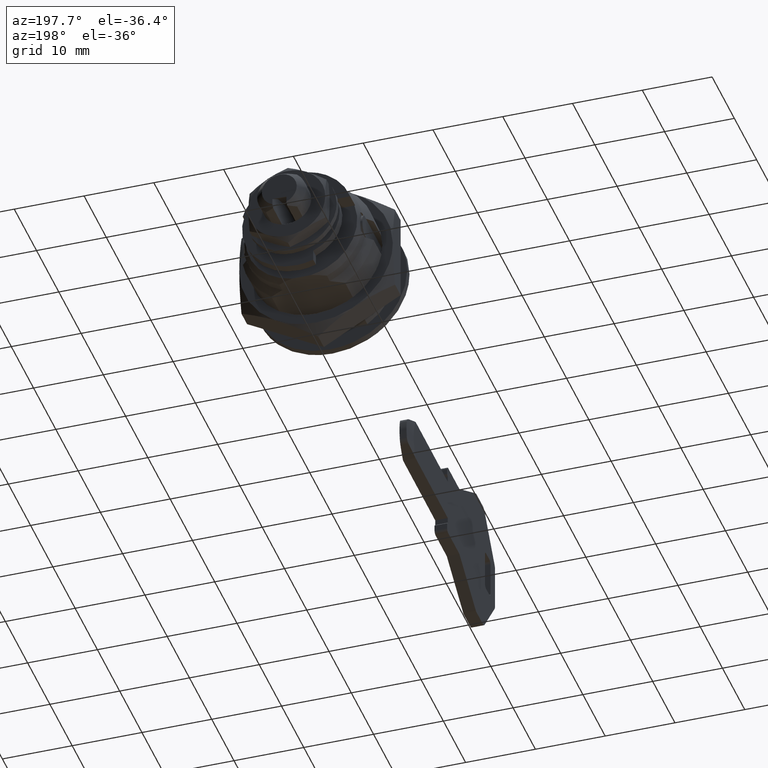
[diagram: clean part render]
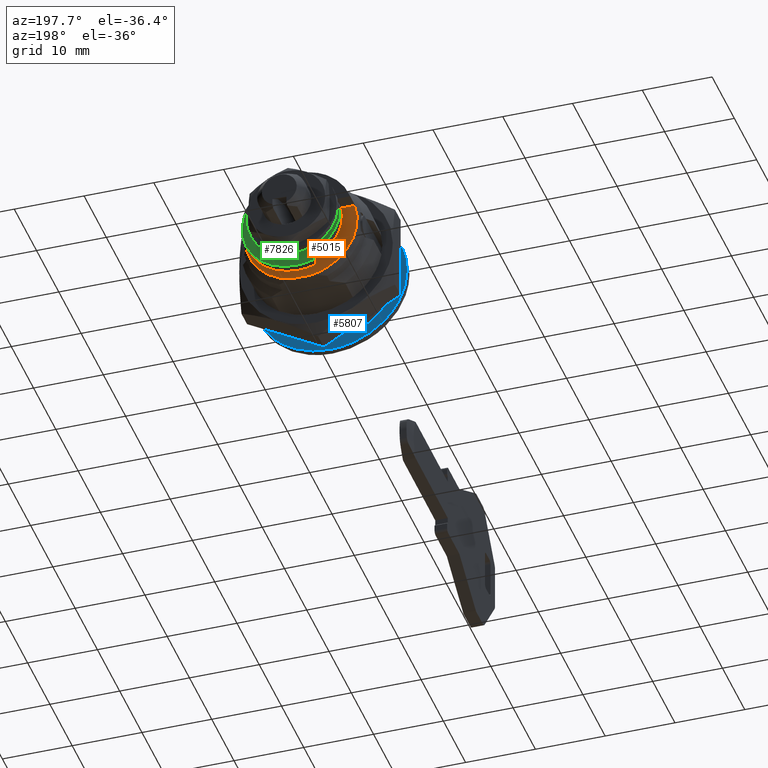
[diagram: same view with three faces highlighted in distinct colors, each labeled with its STEP entity id]
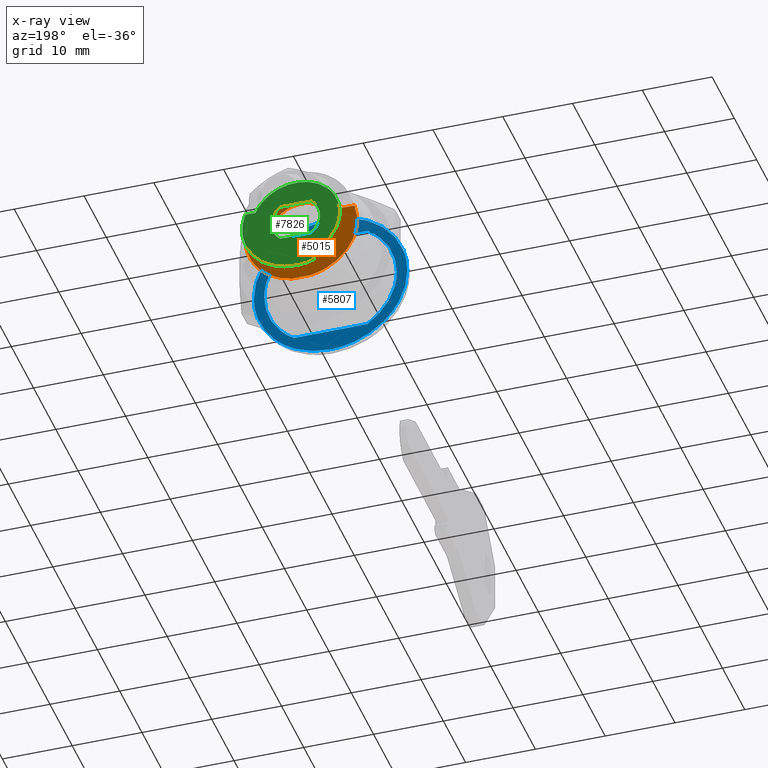
[diagram: x-ray of the same camera — body ghosted, the three highlighted faces saturated]
A machine part, auxiliary view with three faces highlighted in distinct colors.
The next image is the same camera in x-ray (body ghosted, the three faces saturated) — at least one of them is partly hidden behind the body in this view.
Their STEP definitions:

[orange] entity #5015 — the highlighted face is a freeform B-spline surface patch.
#3879=CARTESIAN_POINT('',(15.100000000000000,1.322913451439572,-7.900000000000000));
#3880=VERTEX_POINT('',#3879);
#3888=CARTESIAN_POINT('',(15.100000000000000,-1.322913451439574,-7.900000000000000));
#3889=VERTEX_POINT('',#3888);
#3890=CARTESIAN_POINT('',(15.100000000000000,-1.322913451439574,-7.900000000000000));
#3891=CARTESIAN_POINT('',(15.100000000000000,1.322913451439572,-7.900000000000000));
#3892=QUASI_UNIFORM_CURVE('',1,(#3890,#3891),.UNSPECIFIED.,.F.,.U.);
#3893=EDGE_CURVE('',#3889,#3880,#3892,.T.);
#4116=CARTESIAN_POINT('',(15.100000000000000,7.609868592820800,2.499999999999901));
#4117=VERTEX_POINT('',#4116);
#4129=CARTESIAN_POINT('',(15.100000000000000,5.782732917920440,2.499999999999901));
#4130=VERTEX_POINT('',#4129);
#4136=CARTESIAN_POINT('',(15.100000000000000,7.609868592820800,2.499999999999901));
#4137=CARTESIAN_POINT('',(15.100000000000000,5.782732917920440,2.499999999999901));
#4138=QUASI_UNIFORM_CURVE('',1,(#4136,#4137),.UNSPECIFIED.,.F.,.U.);
#4139=EDGE_CURVE('',#4117,#4130,#4138,.T.);
#4180=CARTESIAN_POINT('',(15.100000000000000,-5.782732917920440,2.499999999999901));
#4181=VERTEX_POINT('',#4180);
#4182=CARTESIAN_POINT('',(15.100000000000000,-7.609868592820789,2.499999999999901));
#4183=VERTEX_POINT('',#4182);
#4184=CARTESIAN_POINT('',(15.100000000000000,-5.782732917920440,2.499999999999901));
#4185=CARTESIAN_POINT('',(15.100000000000000,-7.609868592820789,2.499999999999901));
#4186=QUASI_UNIFORM_CURVE('',1,(#4184,#4185),.UNSPECIFIED.,.F.,.U.);
#4187=EDGE_CURVE('',#4181,#4183,#4186,.T.);
#4228=CARTESIAN_POINT('',(15.100000000000000,5.782732917920440,2.499999999999901));
#4229=CARTESIAN_POINT('',(15.100000000000071,5.540730627159654,3.060445299565796));
#4230=CARTESIAN_POINT('',(15.099999999999881,4.972952124531085,3.978648457689054));
#4231=CARTESIAN_POINT('',(15.100000000000090,3.974336321892116,4.933501335624913));
#4232=CARTESIAN_POINT('',(15.099999999999920,2.855435165047230,5.668898145733557));
#4233=CARTESIAN_POINT('',(15.099999999999920,1.671847658541845,6.131280239169487));
#4234=CARTESIAN_POINT('',(15.100000000000140,0.193438635770046,6.347607811715665));
#4235=CARTESIAN_POINT('',(15.099999999999991,-1.034029760605798,6.258308581428074));
#4236=CARTESIAN_POINT('',(15.099999999999950,-2.176095890660537,5.938980445694924));
#4237=CARTESIAN_POINT('',(15.099999999999939,-3.047195738420247,5.542695311118567));
#4238=CARTESIAN_POINT('',(15.100000000000120,-4.038361331394656,4.891575098610899));
#4239=CARTESIAN_POINT('',(15.099999999999840,-5.021450018920950,3.916549561798438));
#4240=CARTESIAN_POINT('',(15.100000000000200,-5.570902950844285,2.990334101452074));
#4241=CARTESIAN_POINT('',(15.100000000000000,-5.782732917920440,2.499999999999901));
#4242=B_SPLINE_CURVE_WITH_KNOTS('',3,(#4228,#4229,#4230,#4231,#4232,#4233,#4234,#4235,#4236,#4237,#4238,#4239,#4240,#4241),.UNSPECIFIED.,.F.,.U.,(4,1,1,1,1,1,1,1,1,1,1,4),(0.000000171034312,1.831330833070155,3.204842635082727,4.120529735850745,5.837448627879189,6.982029298408569,8.584370677155309,9.500059296555911,10.530210866741109,11.445893116199970,13.048344692560180,14.650733646407700),.UNSPECIFIED.);
#4243=EDGE_CURVE('',#4130,#4181,#4242,.T.);
#4405=CARTESIAN_POINT('',(15.100000000000000,-1.402675650882624,-4.275804137050830));
#4406=VERTEX_POINT('',#4405);
#4469=CARTESIAN_POINT('',(15.100000000000000,1.402675650882626,-4.275804137050830));
#4470=VERTEX_POINT('',#4469);
#4869=CARTESIAN_POINT('',(15.100000000000000,7.609868592820800,2.499999999999901));
#4870=CARTESIAN_POINT('',(15.099999999999991,7.834364174273542,1.817423446500035));
#4871=CARTESIAN_POINT('',(15.100000000000010,8.025142873582659,0.783627539029406));
#4872=CARTESIAN_POINT('',(15.100000000000010,8.006170387087662,-0.763943873868557));
#4873=CARTESIAN_POINT('',(15.099999999999961,7.784281559199618,-2.080542019910135));
#4874=CARTESIAN_POINT('',(15.100000000000030,7.282062345294344,-3.433770205040200));
#4875=CARTESIAN_POINT('',(15.100000000000030,6.498219660586179,-4.770794693207190));
#4876=CARTESIAN_POINT('',(15.099999999999840,5.418738590136533,-5.988469482087225));
#4877=CARTESIAN_POINT('',(15.099999999999961,4.127793525824176,-6.916584440978048));
#4878=CARTESIAN_POINT('',(15.100000000000231,2.759971682794183,-7.563388396409965));
#4879=CARTESIAN_POINT('',(15.099999999999829,1.854412437402188,-7.811080968091188));
#4880=CARTESIAN_POINT('',(15.100000000000000,1.322913451439572,-7.900000000000000));
#4881=B_SPLINE_CURVE_WITH_KNOTS('',3,(#4869,#4870,#4871,#4872,#4873,#4874,#4875,#4876,#4877,#4878,#4879,#4880),.UNSPECIFIED.,.F.,.U.,(4,1,1,1,1,1,1,1,1,4),(0.000000112823214,2.155550369902121,3.125578012597309,4.634499058849574,6.143388910580266,7.436687687487919,9.268941600921085,10.993426060410140,12.179009889291960,13.795658274486330),.UNSPECIFIED.);
#4882=EDGE_CURVE('',#4117,#3880,#4881,.T.);
#4937=CARTESIAN_POINT('',(15.100000000000000,-8.806901520369095,-8.609288583805860));
#4938=CARTESIAN_POINT('',(15.100000000000000,-8.806901520369095,7.009258367827234));
#4939=CARTESIAN_POINT('',(15.100000000000000,8.807009905798752,-8.609288583805860));
#4940=CARTESIAN_POINT('',(15.100000000000000,8.807009905798752,7.009258367827234));
#4941=B_SPLINE_SURFACE_WITH_KNOTS('',1,1,((#4937,#4939),(#4938,#4940)),.UNSPECIFIED.,.F.,.F.,.U.,(2,2),(2,2),(0.0,15.618546951633091),(0.0,17.613911426167849),.UNSPECIFIED.);
#4942=CARTESIAN_POINT('',(15.100000000000000,-1.322913451439574,-7.900000000000000));
#4943=CARTESIAN_POINT('',(15.100000000000010,-2.031625920649200,-7.781556561049676));
#4944=CARTESIAN_POINT('',(15.099999999999980,-3.035687316316266,-7.470079265853165));
#4945=CARTESIAN_POINT('',(15.100000000000019,-4.302132682559550,-6.785361093211535));
#4946=CARTESIAN_POINT('',(15.099999999999969,-5.262655488770996,-6.084881058058556));
#4947=CARTESIAN_POINT('',(15.100000000000071,-6.327150877684950,-5.007311885903559));
#4948=CARTESIAN_POINT('',(15.099999999999930,-7.187260168192188,-3.667268179351777));
#4949=CARTESIAN_POINT('',(15.100000000000120,-7.723667407732305,-2.250758307810683));
#4950=CARTESIAN_POINT('',(15.099999999999881,-8.025361132275735,-0.768063249167171));
#4951=CARTESIAN_POINT('',(15.100000000000129,-8.034049682313707,0.824241737696424));
#4952=CARTESIAN_POINT('',(15.099999999999930,-7.778118103246028,1.988060436068460));
#4953=CARTESIAN_POINT('',(15.100000000000000,-7.609868592820789,2.499999999999901));
#4954=B_SPLINE_CURVE_WITH_KNOTS('',3,(#4942,#4943,#4944,#4945,#4946,#4947,#4948,#4949,#4950,#4951,#4952,#4953),.UNSPECIFIED.,.F.,.U.,(4,1,1,1,1,1,1,1,1,4),(0.000000112822182,2.155550369901398,3.125578012596737,4.311145865712797,5.712295935890376,7.652266334699592,9.053381694640969,10.238963290789080,12.179009889291970,13.795658274486330),.UNSPECIFIED.);
#4955=EDGE_CURVE('',#3889,#4183,#4954,.T.);
#4956=ORIENTED_EDGE('',*,*,#4955,.F.);
#4957=ORIENTED_EDGE('',*,*,#3893,.T.);
#4958=ORIENTED_EDGE('',*,*,#4882,.F.);
#4959=ORIENTED_EDGE('',*,*,#4139,.T.);
#4960=ORIENTED_EDGE('',*,*,#4243,.T.);
#4961=ORIENTED_EDGE('',*,*,#4187,.T.);
#4962=EDGE_LOOP('',(#4956,#4957,#4958,#4959,#4960,#4961));
#4963=FACE_OUTER_BOUND('',#4962,.T.);
#4964=CARTESIAN_POINT('',(15.100000000000000,-1.402675650882624,-4.275804137050830));
#4965=CARTESIAN_POINT('',(15.100000000000010,-0.979159867154449,-4.414935902691544));
#4966=CARTESIAN_POINT('',(15.099999999999980,-0.031219048423250,-4.575753906719356));
#4967=CARTESIAN_POINT('',(15.100000000000010,0.922710482066283,-4.433593861065389));
#4968=CARTESIAN_POINT('',(15.100000000000000,1.402675650882626,-4.275804137050830));
#4969=B_SPLINE_CURVE_WITH_KNOTS('',3,(#4964,#4965,#4966,#4967,#4968),.UNSPECIFIED.,.F.,.U.,(4,1,4),(0.000000017065712,1.337317541986710,2.852935422225230),.UNSPECIFIED.);
#4970=EDGE_CURVE('',#4406,#4470,#4969,.T.);
#4971=ORIENTED_EDGE('',*,*,#4970,.F.);
#4972=CARTESIAN_POINT('',(15.100000000000000,-0.000001104235806,4.499999999999863));
#4973=VERTEX_POINT('',#4972);
#4974=CARTESIAN_POINT('',(15.100000000000000,-0.000001104235806,4.499999999999863));
#4975=CARTESIAN_POINT('',(15.100000000000041,-0.330996575256605,4.500062521211795));
#4976=CARTESIAN_POINT('',(15.099999999999991,-0.943330255456505,4.432118421221482));
#4977=CARTESIAN_POINT('',(15.100000000000019,-1.844426901013450,4.139097732076783));
#4978=CARTESIAN_POINT('',(15.099999999999961,-2.567530966123758,3.726408963003565));
#4979=CARTESIAN_POINT('',(15.100000000000090,-3.201728723191540,3.191488167095046));
#4980=CARTESIAN_POINT('',(15.099999999999810,-3.794114565700793,2.495034919589796));
#4981=CARTESIAN_POINT('',(15.100000000000030,-4.281188583918724,1.543112003251407));
#4982=CARTESIAN_POINT('',(15.100000000000041,-4.517988868517644,0.451430685405716));
#4983=CARTESIAN_POINT('',(15.100000000000049,-4.498454075570890,-0.630730416747898));
#4984=CARTESIAN_POINT('',(15.099999999999840,-4.199521266089040,-1.777022632784927));
#4985=CARTESIAN_POINT('',(15.100000000000129,-3.634390587588445,-2.727057499384979));
#4986=CARTESIAN_POINT('',(15.099999999999900,-2.972601844308457,-3.403957841150510));
#4987=CARTESIAN_POINT('',(15.100000000000239,-2.292048759854570,-3.907495560154415));
#4988=CARTESIAN_POINT('',(15.099999999999641,-1.748681193958564,-4.162400798576514));
#4989=CARTESIAN_POINT('',(15.100000000000000,-1.402675650882624,-4.275804137050830));
#4990=B_SPLINE_CURVE_WITH_KNOTS('',3,(#4974,#4975,#4976,#4977,#4978,#4979,#4980,#4981,#4982,#4983,#4984,#4985,#4986,#4987,#4988,#4989),.UNSPECIFIED.,.F.,.U.,(4,1,1,1,1,1,1,1,1,1,1,1,1,4),(0.000000397762996,0.992974529323917,1.837106027695455,2.830135111829659,3.475614109233186,4.319715811529324,5.560984693144598,6.653232709271631,7.646302424301655,8.788312293136954,10.178562502121190,10.923369725692529,11.618465746015721,12.710785923422851),.UNSPECIFIED.);
#4991=EDGE_CURVE('',#4973,#4406,#4990,.T.);
#4992=ORIENTED_EDGE('',*,*,#4991,.F.);
#4993=CARTESIAN_POINT('',(15.100000000000000,1.402675650882626,-4.275804137050830));
#4994=CARTESIAN_POINT('',(15.100000000000030,1.748662682499337,-4.162391869060335));
#4995=CARTESIAN_POINT('',(15.099999999999969,2.261850272937385,-3.921675153187176));
#4996=CARTESIAN_POINT('',(15.100000000000030,2.974293217150616,-3.406645384469089));
#4997=CARTESIAN_POINT('',(15.099999999999961,3.579154734787371,-2.787761549461548));
#4998=CARTESIAN_POINT('',(15.100000000000030,4.078131800115115,-1.979635816532041));
#4999=CARTESIAN_POINT('',(15.100000000000000,4.363625772043277,-1.181341309374280));
#5000=CARTESIAN_POINT('',(15.099999999999939,4.504664575967817,-0.397442802139917));
#5001=CARTESIAN_POINT('',(15.100000000000041,4.511330063356450,0.533926722515511));
#5002=CARTESIAN_POINT('',(15.100000000000010,4.282576592352059,1.509926353093359));
#5003=CARTESIAN_POINT('',(15.099999999999969,3.860179880129772,2.358098788328445));
#5004=CARTESIAN_POINT('',(15.100000000000019,3.404909632785475,2.971567023138527));
#5005=CARTESIAN_POINT('',(15.100000000000000,2.846074363243367,3.516025045358421));
#5006=CARTESIAN_POINT('',(15.099999999999991,2.144005014364208,3.992080434960112));
#5007=CARTESIAN_POINT('',(15.100000000000041,1.174974169201085,4.392309364045463));
#5008=CARTESIAN_POINT('',(15.100000000000000,0.430322909685584,4.500189204008781));
#5009=CARTESIAN_POINT('',(15.100000000000000,-0.000001104235806,4.499999999999863));
#5010=B_SPLINE_CURVE_WITH_KNOTS('',3,(#4993,#4994,#4995,#4996,#4997,#4998,#4999,#5000,#5001,#5002,#5003,#5004,#5005,#5006,#5007,#5008,#5009),.UNSPECIFIED.,.F.,.U.,(4,1,1,1,1,1,1,1,1,1,1,1,1,1,4),(0.000000397739790,1.092279932722340,1.688109836276754,2.631527120527666,3.674222658916497,4.518324126263618,5.163811998372403,6.057555480255015,7.298710888413392,8.142810751867479,8.887618104852979,9.582742795786075,10.476478194868960,11.419878622740841,12.710788131928091),.UNSPECIFIED.);
#5011=EDGE_CURVE('',#4470,#4973,#5010,.T.);
#5012=ORIENTED_EDGE('',*,*,#5011,.F.);
#5013=EDGE_LOOP('',(#4971,#4992,#5012));
#5014=FACE_BOUND('',#5013,.T.);
#5015=ADVANCED_FACE('',(#4963,#5014),#4941,.F.);

[blue] entity #5807 — the highlighted face is a freeform B-spline surface patch.
#2770=CARTESIAN_POINT('',(2.000000000000115,-7.845754741659295,-7.710001607418980));
#2771=VERTEX_POINT('',#2770);
#2777=CARTESIAN_POINT('',(2.000000000000115,-10.999999999999909,0.000001408819527));
#2778=VERTEX_POINT('',#2777);
#2779=CARTESIAN_POINT('',(2.000000000000115,-7.845754741659295,-7.710001607418980));
#2780=CARTESIAN_POINT('',(2.000000000000115,-8.438492428814955,-7.107116997665400));
#2781=CARTESIAN_POINT('',(2.000000000000116,-9.236055255062706,-6.081824300505631));
#2782=CARTESIAN_POINT('',(2.000000000000114,-10.213753508039179,-4.228686024086850));
#2783=CARTESIAN_POINT('',(2.000000000000123,-10.838747824819141,-2.313806062048935));
#2784=CARTESIAN_POINT('',(2.000000000000111,-11.000106761145950,-0.756450724903560));
#2785=CARTESIAN_POINT('',(2.000000000000115,-10.999999999999909,0.000001408819527));
#2786=B_SPLINE_CURVE_WITH_KNOTS('',3,(#2779,#2780,#2781,#2782,#2783,#2784,#2785),.UNSPECIFIED.,.F.,.U.,(4,1,1,1,4),(0.000000019915442,2.536338315210077,3.871265796770818,6.274088459617094,8.543440307720644),.UNSPECIFIED.);
#2787=EDGE_CURVE('',#2771,#2778,#2786,.T.);
#2789=CARTESIAN_POINT('',(2.000000000000115,0.0,11.0));
#2790=VERTEX_POINT('',#2789);
#2791=CARTESIAN_POINT('',(2.000000000000115,-10.999999999999909,0.000001408819527));
#2792=CARTESIAN_POINT('',(2.000000000000115,-11.000111413571929,0.764957410818571));
#2793=CARTESIAN_POINT('',(2.000000000000118,-10.877439867847571,1.934813956826253));
#2794=CARTESIAN_POINT('',(2.000000000000113,-10.348651429737810,3.892626659023365));
#2795=CARTESIAN_POINT('',(2.000000000000115,-9.469319617156589,5.781984265328669));
#2796=CARTESIAN_POINT('',(2.000000000000126,-8.104421606901616,7.530706204752335));
#2797=CARTESIAN_POINT('',(2.000000000000098,-6.786117951303128,8.696219890869593));
#2798=CARTESIAN_POINT('',(2.000000000000136,-5.554699988242239,9.530022961851355));
#2799=CARTESIAN_POINT('',(2.000000000000113,-4.144168327183627,10.240075827133440));
#2800=CARTESIAN_POINT('',(2.000000000000118,-2.249782172278039,10.840236498629499));
#2801=CARTESIAN_POINT('',(2.000000000000103,-0.809948021176963,11.000136691243220));
#2802=CARTESIAN_POINT('',(2.000000000000115,0.0,11.0));
#2803=B_SPLINE_CURVE_WITH_KNOTS('',3,(#2791,#2792,#2793,#2794,#2795,#2796,#2797,#2798,#2799,#2800,#2801,#2802),.UNSPECIFIED.,.F.,.U.,(4,1,1,1,1,1,1,1,1,4),(0.000000057959962,2.294849642750638,3.509770232109974,6.074613237684309,8.504456819681119,10.124327667291450,11.339251194513441,12.959150427206399,14.849038926338570,17.278867217588179),.UNSPECIFIED.);
#2804=EDGE_CURVE('',#2778,#2790,#2803,.T.);
#2806=CARTESIAN_POINT('',(2.000000000000115,10.999999999999909,-0.000001408819301));
#2807=VERTEX_POINT('',#2806);
#2808=CARTESIAN_POINT('',(2.000000000000115,0.0,11.0));
#2809=CARTESIAN_POINT('',(2.000000000000116,1.079993503642493,11.000524428593931));
#2810=CARTESIAN_POINT('',(2.000000000000116,2.654574569665834,10.766134509608101));
#2811=CARTESIAN_POINT('',(2.000000000000113,4.552478213614942,10.047215388387761));
#2812=CARTESIAN_POINT('',(2.000000000000114,5.864526246203694,9.345942059773378));
#2813=CARTESIAN_POINT('',(2.000000000000121,7.180948435865426,8.394471633426925));
#2814=CARTESIAN_POINT('',(2.000000000000109,8.266717255278836,7.308684344883139));
#2815=CARTESIAN_POINT('',(2.000000000000130,9.221466694414179,6.053815375758146));
#2816=CARTESIAN_POINT('',(2.000000000000104,10.008655586543160,4.683974706043210));
#2817=CARTESIAN_POINT('',(2.000000000000121,10.779760572241910,2.609643569645699));
#2818=CARTESIAN_POINT('',(2.000000000000115,11.000363347228831,0.989966126967219));
#2819=CARTESIAN_POINT('',(2.000000000000115,10.999999999999909,-0.000001408819301));
#2820=B_SPLINE_CURVE_WITH_KNOTS('',3,(#2808,#2809,#2810,#2811,#2812,#2813,#2814,#2815,#2816,#2817,#2818,#2819),.UNSPECIFIED.,.F.,.U.,(4,1,1,1,1,1,1,1,1,4),(0.000000057463929,3.239779389731030,4.724691727448521,6.074613795918181,7.694533599794758,9.584336639838870,10.664274084836290,12.419186373234860,14.309077481814400,17.278868805665990),.UNSPECIFIED.);
#2821=EDGE_CURVE('',#2790,#2807,#2820,.T.);
#2823=CARTESIAN_POINT('',(2.000000000000115,7.710002102371197,-7.845755242725687));
#2824=VERTEX_POINT('',#2823);
#2825=CARTESIAN_POINT('',(2.000000000000115,10.999999999999909,-0.000001408819301));
#2826=CARTESIAN_POINT('',(2.000000000000110,11.000181021859380,-0.864458927878384));
#2827=CARTESIAN_POINT('',(2.000000000000122,10.811316469580770,-2.456740716792883));
#2828=CARTESIAN_POINT('',(2.000000000000112,10.074717103959710,-4.572552496524351));
#2829=CARTESIAN_POINT('',(2.000000000000120,9.051466064619785,-6.354782133922583));
#2830=CARTESIAN_POINT('',(2.000000000000110,8.196815247268942,-7.367468331715108));
#2831=CARTESIAN_POINT('',(2.000000000000115,7.710002102371197,-7.845755242725687));
#2832=B_SPLINE_CURVE_WITH_KNOTS('',3,(#2825,#2826,#2827,#2828,#2829,#2830,#2831),.UNSPECIFIED.,.F.,.U.,(4,1,1,1,4),(0.000000017043380,2.593333576721521,4.777170567026847,6.688063538356241,8.735427745176825),.UNSPECIFIED.);
#2833=EDGE_CURVE('',#2807,#2824,#2832,.T.);
#2865=CARTESIAN_POINT('',(2.000000000000115,0.0,-11.0));
#2866=VERTEX_POINT('',#2865);
#2867=CARTESIAN_POINT('',(2.000000000000115,7.710002102371197,-7.845755242725687));
#2868=CARTESIAN_POINT('',(2.000000000000117,7.075400887193083,-8.469705143410625));
#2869=CARTESIAN_POINT('',(2.000000000000112,5.760201781338397,-9.480100203228469));
#2870=CARTESIAN_POINT('',(2.000000000000116,3.768537995921818,-10.395513542156730));
#2871=CARTESIAN_POINT('',(2.000000000000120,1.868847886715865,-10.890294783603100));
#2872=CARTESIAN_POINT('',(2.000000000000113,0.667454934128807,-11.000065869867020));
#2873=CARTESIAN_POINT('',(2.000000000000115,0.0,-11.0));
#2874=B_SPLINE_CURVE_WITH_KNOTS('',3,(#2867,#2868,#2869,#2870,#2871,#2872,#2873),.UNSPECIFIED.,.F.,.U.,(4,1,1,1,4),(0.000000019906917,2.669831244168999,4.939159074084010,6.541071144071802,8.543439174205554),.UNSPECIFIED.);
#2875=EDGE_CURVE('',#2824,#2866,#2874,.T.);
#2877=CARTESIAN_POINT('',(2.000000000000115,0.0,-11.0));
#2878=CARTESIAN_POINT('',(2.000000000000115,-0.591459259074157,-11.000045080757900));
#2879=CARTESIAN_POINT('',(2.000000000000116,-1.728867915468765,-10.908034033757231));
#2880=CARTESIAN_POINT('',(2.000000000000120,-3.192772898849350,-10.556378512191520));
#2881=CARTESIAN_POINT('',(2.000000000000106,-4.727681795904312,-9.978978477472337));
#2882=CARTESIAN_POINT('',(2.000000000000133,-6.284975276080690,-9.110467400382602));
#2883=CARTESIAN_POINT('',(2.000000000000100,-7.367461247350228,-8.196802818392310));
#2884=CARTESIAN_POINT('',(2.000000000000115,-7.845754741659295,-7.710001607418980));
#2885=B_SPLINE_CURVE_WITH_KNOTS('',3,(#2877,#2878,#2879,#2880,#2881,#2882,#2883,#2884),.UNSPECIFIED.,.F.,.U.,(4,1,1,1,1,4),(0.000000017033477,1.774380551160322,3.412290124289248,4.504197691086388,6.688064404302004,8.735428876192307),.UNSPECIFIED.);
#2886=EDGE_CURVE('',#2866,#2771,#2885,.T.);
#3136=CARTESIAN_POINT('',(2.000000000000100,9.499976265936599,-0.030031519363459));
#3137=VERTEX_POINT('',#3136);
#3162=CARTESIAN_POINT('',(2.000000000000100,9.499987226618451,0.022031519363478));
#3163=VERTEX_POINT('',#3162);
#3164=CARTESIAN_POINT('',(2.000000000000100,9.499987226618451,0.022031519363478));
#3165=CARTESIAN_POINT('',(2.000000000000100,9.499976265936599,-0.030031519363459));
#3166=QUASI_UNIFORM_CURVE('',1,(#3164,#3165),.UNSPECIFIED.,.F.,.U.);
#3167=EDGE_CURVE('',#3163,#3137,#3166,.T.);
#3441=CARTESIAN_POINT('',(2.000000000000100,-9.499987226618451,0.022031519363478));
#3442=VERTEX_POINT('',#3441);
#3470=CARTESIAN_POINT('',(1.999999999998820,-9.499976265936819,-0.030031519363603));
#3471=VERTEX_POINT('',#3470);
#3472=CARTESIAN_POINT('',(1.999999999998820,-9.499976265936819,-0.030031519363603));
#3473=CARTESIAN_POINT('',(2.000000000000100,-9.499987226618451,0.022031519363478));
#3474=QUASI_UNIFORM_CURVE('',1,(#3472,#3473),.UNSPECIFIED.,.F.,.U.);
#3475=EDGE_CURVE('',#3471,#3442,#3474,.T.);
#3847=CARTESIAN_POINT('',(2.000000000000100,-5.276362383309160,-7.900000000000000));
#3848=VERTEX_POINT('',#3847);
#3849=CARTESIAN_POINT('',(2.000000000000100,5.276362383309160,-7.900000000000000));
#3850=VERTEX_POINT('',#3849);
#3851=CARTESIAN_POINT('',(2.000000000000100,-5.276362383309160,-7.900000000000000));
#3852=CARTESIAN_POINT('',(2.000000000000100,5.276362383309160,-7.900000000000000));
#3853=QUASI_UNIFORM_CURVE('',1,(#3851,#3852),.UNSPECIFIED.,.F.,.U.);
#3854=EDGE_CURVE('',#3848,#3850,#3853,.T.);
#4020=CARTESIAN_POINT('',(2.000000000000100,5.276362383309160,7.900000000000000));
#4021=VERTEX_POINT('',#4020);
#4027=CARTESIAN_POINT('',(2.000000000000100,-5.276362383309160,7.900000000000000));
#4028=VERTEX_POINT('',#4027);
#4029=CARTESIAN_POINT('',(2.000000000000100,-5.276362383309160,7.900000000000000));
#4030=CARTESIAN_POINT('',(2.000000000000100,5.276362383309160,7.900000000000000));
#4031=QUASI_UNIFORM_CURVE('',1,(#4029,#4030),.UNSPECIFIED.,.F.,.U.);
#4032=EDGE_CURVE('',#4028,#4021,#4031,.T.);
#5531=CARTESIAN_POINT('',(2.000000000000100,-5.276362383309160,7.900000000000000));
#5532=CARTESIAN_POINT('',(2.000000000000105,-5.820586052627580,7.536650835613864));
#5533=CARTESIAN_POINT('',(2.000000000000099,-6.589518096629792,6.898961972605562));
#5534=CARTESIAN_POINT('',(2.000000000000102,-7.583686791600377,5.769382326766809));
#5535=CARTESIAN_POINT('',(2.000000000000103,-8.473719358766378,4.434091783176499));
#5536=CARTESIAN_POINT('',(2.000000000000091,-9.278661025694303,2.469193084719516));
#5537=CARTESIAN_POINT('',(2.000000000000108,-9.498256517231898,0.870298168119517));
#5538=CARTESIAN_POINT('',(2.000000000000100,-9.499987226618451,0.022031519363478));
#5539=B_SPLINE_CURVE_WITH_KNOTS('',3,(#5531,#5532,#5533,#5534,#5535,#5536,#5537,#5538),.UNSPECIFIED.,.F.,.U.,(4,1,1,1,1,4),(0.000000038889979,1.963082146095792,2.980982793492676,4.507826013996179,6.761731586120229,9.306470046981215),.UNSPECIFIED.);
#5540=EDGE_CURVE('',#4028,#3442,#5539,.T.);
#5560=CARTESIAN_POINT('',(1.999999999998820,-9.499976265936819,-0.030031519363603));
#5561=CARTESIAN_POINT('',(1.999999999998928,-9.497613290368824,-0.877584598562962));
#5562=CARTESIAN_POINT('',(1.999999999999101,-9.323621643771949,-2.136038379382791));
#5563=CARTESIAN_POINT('',(1.999999999999340,-8.747843449084829,-3.785594486880334));
#5564=CARTESIAN_POINT('',(1.999999999999540,-8.145450411359164,-4.950466610402825));
#5565=CARTESIAN_POINT('',(1.999999999999792,-7.075870264390057,-6.452860310702978));
#5566=CARTESIAN_POINT('',(1.999999999999976,-6.062019975449369,-7.375858352908097));
#5567=CARTESIAN_POINT('',(2.000000000000100,-5.276362383309160,-7.900000000000000));
#5568=B_SPLINE_CURVE_WITH_KNOTS('',3,(#5560,#5561,#5562,#5563,#5564,#5565,#5566,#5567),.UNSPECIFIED.,.F.,.U.,(4,1,1,1,1,4),(0.000000038725279,2.542552314367550,3.777518932698460,5.230379970907160,6.465343229069635,9.298474860037954),.UNSPECIFIED.);
#5569=EDGE_CURVE('',#3471,#3848,#5568,.T.);
#5734=CARTESIAN_POINT('',(2.000000000000100,9.499987226618451,0.022031519363478));
#5735=CARTESIAN_POINT('',(2.000000000000102,9.498269566672278,0.870303500809094));
#5736=CARTESIAN_POINT('',(2.000000000000100,9.318511450201058,2.178453022022530));
#5737=CARTESIAN_POINT('',(2.000000000000102,8.632187435871229,4.100843016290989));
#5738=CARTESIAN_POINT('',(2.000000000000100,7.842420428441053,5.447614680862450));
#5739=CARTESIAN_POINT('',(2.000000000000102,6.681496415649913,6.818523473608999));
#5740=CARTESIAN_POINT('',(2.000000000000098,5.860905117825876,7.509743539393038));
#5741=CARTESIAN_POINT('',(2.000000000000100,5.276362383309160,7.900000000000000));
#5742=B_SPLINE_CURVE_WITH_KNOTS('',3,(#5734,#5735,#5736,#5737,#5738,#5739,#5740,#5741),.UNSPECIFIED.,.F.,.U.,(4,1,1,1,1,4),(0.000000038892390,2.544738483499456,3.926180209841639,6.107360222241921,7.197973457823236,9.306469987540108),.UNSPECIFIED.);
#5743=EDGE_CURVE('',#3163,#4021,#5742,.T.);
#5769=CARTESIAN_POINT('',(2.000000000000100,5.276362383309160,-7.900000000000000));
#5770=CARTESIAN_POINT('',(2.000000000000103,5.679104473454956,-7.631043637329374));
#5771=CARTESIAN_POINT('',(2.000000000000095,6.462432261609552,-7.016358906846916));
#5772=CARTESIAN_POINT('',(2.000000000000103,7.454608045173887,-5.948603787459327));
#5773=CARTESIAN_POINT('',(2.000000000000104,8.367495923259357,-4.602216599802020));
#5774=CARTESIAN_POINT('',(2.000000000000100,9.032436493795730,-3.112874795861366));
#5775=CARTESIAN_POINT('',(2.000000000000103,9.419232305701121,-1.506872506230517));
#5776=CARTESIAN_POINT('',(2.000000000000100,9.498466286361587,-0.514320508153465));
#5777=CARTESIAN_POINT('',(2.000000000000100,9.499976265936599,-0.030031519363459));
#5778=B_SPLINE_CURVE_WITH_KNOTS('',3,(#5769,#5770,#5771,#5772,#5773,#5774,#5775,#5776,#5777),.UNSPECIFIED.,.F.,.U.,(4,1,1,1,1,1,4),(0.000000038725313,1.452876055186986,2.978421861253182,4.358668158797152,6.320053149292106,7.845598955358232,9.298474971819793),.UNSPECIFIED.);
#5779=EDGE_CURVE('',#3850,#3137,#5778,.T.);
#5784=CARTESIAN_POINT('',(2.000000000000100,12.098899957359640,12.098899957359730));
#5785=CARTESIAN_POINT('',(2.000000000000100,-12.098900547445620,12.098899957359730));
#5786=CARTESIAN_POINT('',(2.000000000000100,12.098899957359640,-12.098900547445711));
#5787=CARTESIAN_POINT('',(2.000000000000100,-12.098900547445620,-12.098900547445711));
#5788=B_SPLINE_SURFACE_WITH_KNOTS('',1,1,((#5784,#5786),(#5785,#5787)),.UNSPECIFIED.,.F.,.F.,.U.,(2,2),(2,2),(0.0,24.197800504805251),(0.0,24.197800504805450),.UNSPECIFIED.);
#5789=ORIENTED_EDGE('',*,*,#2875,.F.);
#5790=ORIENTED_EDGE('',*,*,#2833,.F.);
#5791=ORIENTED_EDGE('',*,*,#2821,.F.);
#5792=ORIENTED_EDGE('',*,*,#2804,.F.);
#5793=ORIENTED_EDGE('',*,*,#2787,.F.);
#5794=ORIENTED_EDGE('',*,*,#2886,.F.);
#5795=EDGE_LOOP('',(#5789,#5790,#5791,#5792,#5793,#5794));
#5796=FACE_OUTER_BOUND('',#5795,.T.);
#5797=ORIENTED_EDGE('',*,*,#5743,.F.);
#5798=ORIENTED_EDGE('',*,*,#3167,.T.);
#5799=ORIENTED_EDGE('',*,*,#5779,.F.);
#5800=ORIENTED_EDGE('',*,*,#3854,.F.);
#5801=ORIENTED_EDGE('',*,*,#5569,.F.);
#5802=ORIENTED_EDGE('',*,*,#3475,.T.);
#5803=ORIENTED_EDGE('',*,*,#5540,.F.);
#5804=ORIENTED_EDGE('',*,*,#4032,.T.);
#5805=EDGE_LOOP('',(#5797,#5798,#5799,#5800,#5801,#5802,#5803,#5804));
#5806=FACE_BOUND('',#5805,.T.);
#5807=ADVANCED_FACE('',(#5796,#5806),#5788,.T.);

[green] entity #7826 — the highlighted face is a freeform B-spline surface patch.
#7421=CARTESIAN_POINT('',(17.600000000000001,-2.227105745131905,-2.700000000000090));
#7422=VERTEX_POINT('',#7421);
#7428=CARTESIAN_POINT('',(17.600000000000001,2.227105745131900,-2.700000000000090));
#7429=VERTEX_POINT('',#7428);
#7430=CARTESIAN_POINT('',(17.600000000000001,-2.227105745131905,-2.700000000000090));
#7431=CARTESIAN_POINT('',(17.600000000000001,2.227105745131900,-2.700000000000090));
#7432=QUASI_UNIFORM_CURVE('',1,(#7430,#7431),.UNSPECIFIED.,.F.,.U.);
#7433=EDGE_CURVE('',#7422,#7429,#7432,.T.);
#7472=CARTESIAN_POINT('',(17.600000000000001,-2.227105745132125,2.699999999999905));
#7473=VERTEX_POINT('',#7472);
#7479=CARTESIAN_POINT('',(17.600000000000001,-2.227105745132125,2.699999999999905));
#7480=CARTESIAN_POINT('',(17.600000000000041,-2.450174529509813,2.516088981445756));
#7481=CARTESIAN_POINT('',(17.599999999999959,-2.805837207612301,2.139606084678221));
#7482=CARTESIAN_POINT('',(17.600000000000001,-3.168973977375491,1.529498647296570));
#7483=CARTESIAN_POINT('',(17.600000000000030,-3.406138161709135,0.895498836956752));
#7484=CARTESIAN_POINT('',(17.600000000000019,-3.520413929735531,0.210133620414072));
#7485=CARTESIAN_POINT('',(17.600000000000051,-3.482323045578305,-0.580164920908459));
#7486=CARTESIAN_POINT('',(17.599999999999739,-3.271124370969897,-1.327776059268216));
#7487=CARTESIAN_POINT('',(17.600000000000271,-2.858914193480821,-2.077789224092510));
#7488=CARTESIAN_POINT('',(17.599999999999891,-2.474988083122188,-2.495683713094040));
#7489=CARTESIAN_POINT('',(17.600000000000001,-2.227105745131905,-2.700000000000090));
#7490=B_SPLINE_CURVE_WITH_KNOTS('',3,(#7479,#7480,#7481,#7482,#7483,#7484,#7485,#7486,#7487,#7488,#7489),.UNSPECIFIED.,.F.,.U.,(4,1,1,1,1,1,1,1,4),(0.000000216208011,0.867311582936580,1.541907920846939,2.120144387214428,2.891119381028817,3.613814616234064,4.481164583130298,5.203958677156576,6.167630911826341),.UNSPECIFIED.);
#7491=EDGE_CURVE('',#7473,#7422,#7490,.T.);
#7509=CARTESIAN_POINT('',(17.600000000000001,2.227105745132125,2.699999999999905));
#7510=VERTEX_POINT('',#7509);
#7516=CARTESIAN_POINT('',(17.600000000000001,2.227105745132125,2.699999999999905));
#7517=CARTESIAN_POINT('',(17.600000000000001,-2.227105745132125,2.699999999999905));
#7518=QUASI_UNIFORM_CURVE('',1,(#7516,#7517),.UNSPECIFIED.,.F.,.U.);
#7519=EDGE_CURVE('',#7510,#7473,#7518,.T.);
#7553=CARTESIAN_POINT('',(17.600000000000001,2.227105745131900,-2.700000000000090));
#7554=CARTESIAN_POINT('',(17.600000000000041,2.450152151344854,-2.516078284478494));
#7555=CARTESIAN_POINT('',(17.599999999999941,2.906001228959800,-2.033784223021147));
#7556=CARTESIAN_POINT('',(17.599999999999980,3.315124410189222,-1.238387616106234));
#7557=CARTESIAN_POINT('',(17.600000000000041,3.491177252715820,-0.450968920671130));
#7558=CARTESIAN_POINT('',(17.599999999999980,3.515074801289896,0.242007135020779));
#7559=CARTESIAN_POINT('',(17.600000000000009,3.387597086150059,1.007090079525411));
#7560=CARTESIAN_POINT('',(17.600000000000080,3.003676002026456,1.900045179102940));
#7561=CARTESIAN_POINT('',(17.599999999999959,2.537040827731891,2.444671802721957));
#7562=CARTESIAN_POINT('',(17.600000000000001,2.227105745132125,2.699999999999905));
#7563=B_SPLINE_CURVE_WITH_KNOTS('',3,(#7553,#7554,#7555,#7556,#7557,#7558,#7559,#7560,#7561,#7562),.UNSPECIFIED.,.F.,.U.,(4,1,1,1,1,1,1,4),(0.000000216208083,0.867311582936658,1.975573443139008,2.650178597297371,3.276512076381063,4.047487791816881,4.963021059279771,6.167630911826343),.UNSPECIFIED.);
#7564=EDGE_CURVE('',#7429,#7510,#7563,.T.);
#7584=CARTESIAN_POINT('',(17.600000000000001,2.500000000000000,-5.782732917920380));
#7585=VERTEX_POINT('',#7584);
#7591=CARTESIAN_POINT('',(17.600000000000001,2.500000000000000,-7.282856582413251));
#7592=VERTEX_POINT('',#7591);
#7593=CARTESIAN_POINT('',(17.600000000000001,2.500000000000000,-7.282856582413251));
#7594=CARTESIAN_POINT('',(17.600000000000001,2.500000000000000,-5.782732917920380));
#7595=QUASI_UNIFORM_CURVE('',1,(#7593,#7594),.UNSPECIFIED.,.F.,.U.);
#7596=EDGE_CURVE('',#7592,#7585,#7595,.T.);
#7642=CARTESIAN_POINT('',(17.600000000000001,-7.282856582413280,2.499999999999901));
#7643=VERTEX_POINT('',#7642);
#7644=CARTESIAN_POINT('',(17.600000000000001,-7.282856582413280,2.499999999999901));
#7645=CARTESIAN_POINT('',(17.600000000000001,-7.479146773379033,1.928533668408939));
#7646=CARTESIAN_POINT('',(17.600000000000058,-7.750519249001036,0.673014875701779));
#7647=CARTESIAN_POINT('',(17.599999999999881,-7.689673384812682,-1.041299698626420));
#7648=CARTESIAN_POINT('',(17.600000000000151,-7.335011146161446,-2.434122237738346));
#7649=CARTESIAN_POINT('',(17.599999999999770,-6.892370220999643,-3.488790594845226));
#7650=CARTESIAN_POINT('',(17.600000000000140,-6.318462815469122,-4.452966706550869));
#7651=CARTESIAN_POINT('',(17.599999999999930,-5.418897923766085,-5.544248710190378));
#7652=CARTESIAN_POINT('',(17.600000000000030,-4.174957445953228,-6.551826977447287));
#7653=CARTESIAN_POINT('',(17.600000000000001,-2.755698056748238,-7.236725151036989));
#7654=CARTESIAN_POINT('',(17.600000000000019,-1.326888761645187,-7.626923696379047));
#7655=CARTESIAN_POINT('',(17.600000000000001,0.399120273176161,-7.779186195932452));
#7656=CARTESIAN_POINT('',(17.599999999999980,1.738074590506225,-7.544786040713742));
#7657=CARTESIAN_POINT('',(17.600000000000001,2.500000000000000,-7.282856582413251));
#7658=B_SPLINE_CURVE_WITH_KNOTS('',3,(#7644,#7645,#7646,#7647,#7648,#7649,#7650,#7651,#7652,#7653,#7654,#7655,#7656,#7657),.UNSPECIFIED.,.F.,.U.,(4,1,1,1,1,1,1,1,1,1,1,4),(0.000000213898616,1.812707807172606,3.826900151837826,5.102536961470971,6.109629472544372,7.250979427480356,8.459491441112149,10.339319917469140,12.017796112830601,13.159166036758910,14.770523604759219,17.187480073806299),.UNSPECIFIED.);
#7659=EDGE_CURVE('',#7643,#7592,#7658,.T.);
#7682=CARTESIAN_POINT('',(17.600000000000001,-5.782732917920431,2.499999999999901));
#7683=VERTEX_POINT('',#7682);
#7684=CARTESIAN_POINT('',(17.600000000000001,-5.782732917920431,2.499999999999901));
#7685=CARTESIAN_POINT('',(17.600000000000001,-7.282856582413280,2.499999999999901));
#7686=QUASI_UNIFORM_CURVE('',1,(#7684,#7685),.UNSPECIFIED.,.F.,.U.);
#7687=EDGE_CURVE('',#7683,#7643,#7686,.T.);
#7751=CARTESIAN_POINT('',(17.600000000000001,4.454770974591909,4.454774468357904));
#7752=VERTEX_POINT('',#7751);
#7753=CARTESIAN_POINT('',(17.600000000000001,4.454770974591909,4.454774468357904));
#7754=CARTESIAN_POINT('',(17.600000000000080,3.957847178721444,4.952366148692798));
#7755=CARTESIAN_POINT('',(17.599999999999952,3.112161595313698,5.552625313528535));
#7756=CARTESIAN_POINT('',(17.600000000000030,1.769576840174961,6.080142413772653));
#7757=CARTESIAN_POINT('',(17.600000000000009,0.762167142640982,6.283779561105951));
#7758=CARTESIAN_POINT('',(17.599999999999980,-0.294501968054312,6.317580129873964));
#7759=CARTESIAN_POINT('',(17.600000000000009,-1.345302280419238,6.190736799757865));
#7760=CARTESIAN_POINT('',(17.600000000000030,-2.387613577528478,5.865067406788216));
#7761=CARTESIAN_POINT('',(17.599999999999941,-3.383854952797825,5.349119998539271));
#7762=CARTESIAN_POINT('',(17.600000000000009,-4.307017206617355,4.654279951533231));
#7763=CARTESIAN_POINT('',(17.600000000000009,-5.162175548657187,3.694159823868088));
#7764=CARTESIAN_POINT('',(17.600000000000101,-5.605232729844551,2.910756122797682));
#7765=CARTESIAN_POINT('',(17.600000000000001,-5.782732917920431,2.499999999999901));
#7766=B_SPLINE_CURVE_WITH_KNOTS('',3,(#7753,#7754,#7755,#7756,#7757,#7758,#7759,#7760,#7761,#7762,#7763,#7764,#7765),.UNSPECIFIED.,.F.,.U.,(4,1,1,1,1,1,1,1,1,1,4),(0.000000137744065,2.109474136513100,3.068348622298876,4.314889810647610,5.177869103254031,6.232556041497120,7.479094032453549,8.437940675256151,9.588593755296273,10.930991793144520,12.273390499793930),.UNSPECIFIED.);
#7767=EDGE_CURVE('',#7752,#7683,#7766,.T.);
#7769=CARTESIAN_POINT('',(17.600000000000001,2.500000000000000,-5.782732917920380));
#7770=CARTESIAN_POINT('',(17.599999999999991,2.852065003686233,-5.630569274246060));
#7771=CARTESIAN_POINT('',(17.600000000000051,3.528256883455012,-5.261650686264805));
#7772=CARTESIAN_POINT('',(17.599999999999980,4.325558413950700,-4.614259153065340));
#7773=CARTESIAN_POINT('',(17.600000000000009,5.035427694472069,-3.831483097621145));
#7774=CARTESIAN_POINT('',(17.600000000000001,5.560861017879047,-3.023811431213620));
#7775=CARTESIAN_POINT('',(17.600000000000001,6.007167361070690,-1.995176969232015));
#7776=CARTESIAN_POINT('',(17.599999999999991,6.261098702520783,-0.966156930543786));
#7777=CARTESIAN_POINT('',(17.600000000000009,6.333344297037019,0.250497258717684));
#7778=CARTESIAN_POINT('',(17.600000000000090,6.153025478894132,1.620907368953226));
#7779=CARTESIAN_POINT('',(17.599999999999980,5.562982419015295,3.122229745106861));
#7780=CARTESIAN_POINT('',(17.599999999999969,4.861709433042961,4.048097714749026));
#7781=CARTESIAN_POINT('',(17.600000000000001,4.454770974591909,4.454774468357904));
#7782=B_SPLINE_CURVE_WITH_KNOTS('',3,(#7769,#7770,#7771,#7772,#7773,#7774,#7775,#7776,#7777,#7778,#7779,#7780,#7781),.UNSPECIFIED.,.F.,.U.,(4,1,1,1,1,1,1,1,1,1,4),(0.000000137744090,1.150629118354530,2.301258376561888,3.068349857568521,4.314891547778582,5.177871187795788,6.424303951132642,7.479097043393484,8.821495621699246,10.547475850243380,12.273395440868130),.UNSPECIFIED.);
#7783=EDGE_CURVE('',#7585,#7752,#7782,.T.);
#7808=CARTESIAN_POINT('',(17.600000000000001,-8.394812386554431,6.998977161964290));
#7809=CARTESIAN_POINT('',(17.600000000000001,6.998980170642363,6.998977161964290));
#7810=CARTESIAN_POINT('',(17.600000000000001,-8.394812386554431,-8.394925140151596));
#7811=CARTESIAN_POINT('',(17.600000000000001,6.998980170642363,-8.394925140151596));
#7812=B_SPLINE_SURFACE_WITH_KNOTS('',1,1,((#7808,#7810),(#7809,#7811)),.UNSPECIFIED.,.F.,.F.,.U.,(2,2),(2,2),(0.0,15.393792557196790),(0.0,15.393902302115890),.UNSPECIFIED.);
#7813=ORIENTED_EDGE('',*,*,#7783,.T.);
#7814=ORIENTED_EDGE('',*,*,#7767,.T.);
#7815=ORIENTED_EDGE('',*,*,#7687,.T.);
#7816=ORIENTED_EDGE('',*,*,#7659,.T.);
#7817=ORIENTED_EDGE('',*,*,#7596,.T.);
#7818=EDGE_LOOP('',(#7813,#7814,#7815,#7816,#7817));
#7819=FACE_OUTER_BOUND('',#7818,.T.);
#7820=ORIENTED_EDGE('',*,*,#7519,.F.);
#7821=ORIENTED_EDGE('',*,*,#7564,.F.);
#7822=ORIENTED_EDGE('',*,*,#7433,.F.);
#7823=ORIENTED_EDGE('',*,*,#7491,.F.);
#7824=EDGE_LOOP('',(#7820,#7821,#7822,#7823));
#7825=FACE_BOUND('',#7824,.T.);
#7826=ADVANCED_FACE('',(#7819,#7825),#7812,.F.);